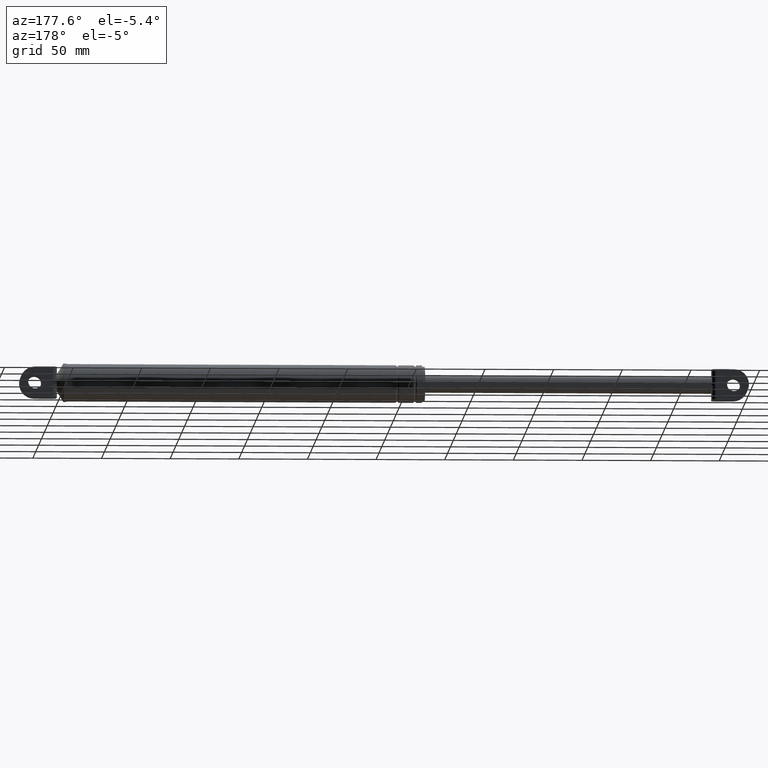
[diagram: clean part render]
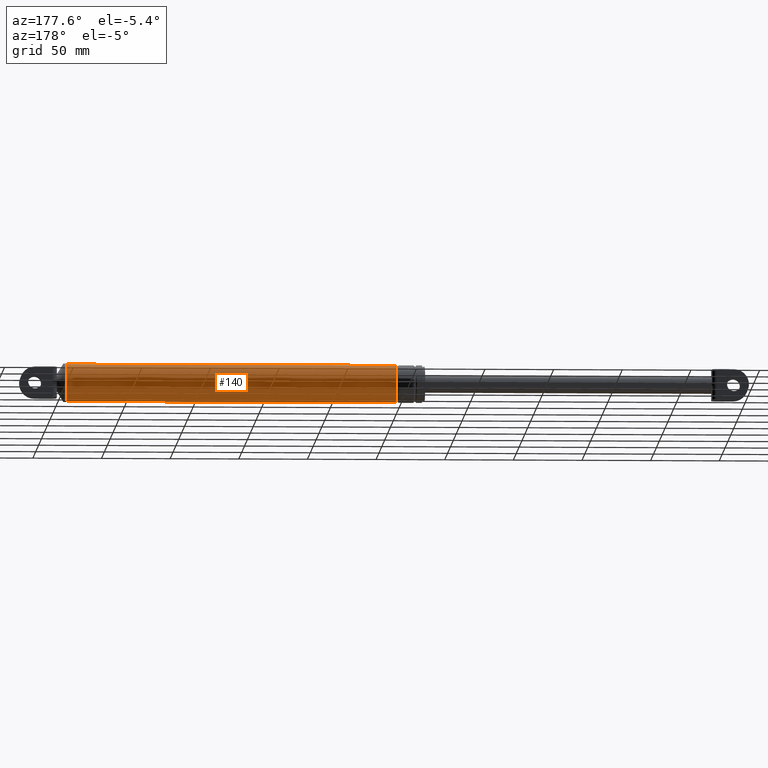
[diagram: same view with one face highlighted and labeled with its STEP entity id]
A machine part, auxiliary view. The second image highlights one B-rep face of the part: STEP entity #140.
In plain terms, the highlighted cylindrical surface (edge-blend (fillet) strip) has radius 13.7 mm, axis along (1, 0, 0).
Its self-contained STEP definition (entity closure, byte-faithful):
#140=ADVANCED_FACE('',(#463),#462,.T.);
#462=CYLINDRICAL_SURFACE('',#1039,1.37000000000E+001);
#463=FACE_OUTER_BOUND('',#1040,.T.);
#1036=CARTESIAN_POINT('',(0.00000000000E+000,0.00000000000E+000,1.88159193491E+002));
#1037=DIRECTION('',(1.00000000000E+000,-0.00000000000E+000,-0.00000000000E+000));
#1038=DIRECTION('',(0.00000000000E+000,0.00000000000E+000,-1.00000000000E+000));
#1039=AXIS2_PLACEMENT_3D('',#1036,#1037,#1038);
#1040=EDGE_LOOP('',(#1536,#1537,#1538,#1539));
#1536=ORIENTED_EDGE('',*,*,#1763,.T.);
#1537=ORIENTED_EDGE('',*,*,#1782,.F.);
#1538=ORIENTED_EDGE('',*,*,#1783,.F.);
#1539=ORIENTED_EDGE('',*,*,#1784,.T.);
#1763=EDGE_CURVE('',#2227,#2226,#2234,.T.);
#1782=EDGE_CURVE('',#2358,#2226,#2359,.T.);
#1783=EDGE_CURVE('',#2365,#2358,#2366,.T.);
#1784=EDGE_CURVE('',#2365,#2227,#2372,.T.);
#2226=VERTEX_POINT('',#3138);
#2227=VERTEX_POINT('',#3139);
#2234=CIRCLE('',#3147,1.37000000000E+001);
#2358=VERTEX_POINT('',#3214);
#2359=(BOUNDED_CURVE() B_SPLINE_CURVE(1,(#3215,#3216),.UNSPECIFIED.,.F.,.F.) B_SPLINE_CURVE_WITH_KNOTS((2,2),(3.84615385907E-002,9.61538461508E-001),.UNSPECIFIED.) CURVE() GEOMETRIC_REPRESENTATION_ITEM() RATIONAL_B_SPLINE_CURVE((1.00000000000E+000,1.00000000000E+000)) REPRESENTATION_ITEM('') );
#2365=VERTEX_POINT('',#3217);
#2366=CIRCLE('',#3221,1.37000000000E+001);
#2372=(BOUNDED_CURVE() B_SPLINE_CURVE(1,(#3222,#3223),.UNSPECIFIED.,.F.,.F.) B_SPLINE_CURVE_WITH_KNOTS((2,2),(3.84615384615E-002,9.61538461538E-001),.UNSPECIFIED.) CURVE() GEOMETRIC_REPRESENTATION_ITEM() RATIONAL_B_SPLINE_CURVE((7.50000000000E-001,7.50000000000E-001)) REPRESENTATION_ITEM('') );
#3138=CARTESIAN_POINT('',(4.40378631324E+002,0.00000000000E+000,1.74459193491E+002));
#3139=CARTESIAN_POINT('',(4.40378631324E+002,0.00000000000E+000,2.01859193491E+002));
#3144=CARTESIAN_POINT('',(4.40378631324E+002,0.00000000000E+000,1.88159193491E+002));
#3145=DIRECTION('',(-1.00000000000E+000,0.00000000000E+000,0.00000000000E+000));
#3146=DIRECTION('',(0.00000000000E+000,-1.22460635382E-016,1.00000000000E+000));
#3147=AXIS2_PLACEMENT_3D('',#3144,#3145,#3146);
#3214=CARTESIAN_POINT('',(2.00378631324E+002,0.00000000000E+000,1.74459193491E+002));
#3215=CARTESIAN_POINT('',(2.00378631357E+002,0.00000000000E+000,1.74459193491E+002));
#3216=CARTESIAN_POINT('',(4.40378631316E+002,0.00000000000E+000,1.74459193491E+002));
#3217=CARTESIAN_POINT('',(2.00378631324E+002,0.00000000000E+000,2.01859193491E+002));
#3218=CARTESIAN_POINT('',(2.00378631324E+002,0.00000000000E+000,1.88159193491E+002));
#3219=DIRECTION('',(-1.00000000000E+000,0.00000000000E+000,0.00000000000E+000));
#3220=DIRECTION('',(0.00000000000E+000,-1.22460635382E-016,1.00000000000E+000));
#3221=AXIS2_PLACEMENT_3D('',#3218,#3219,#3220);
#3222=CARTESIAN_POINT('',(2.00378631324E+002,-5.92118946467E-016,2.01859193491E+002));
#3223=CARTESIAN_POINT('',(4.40378631324E+002,-5.92118946467E-016,2.01859193491E+002));